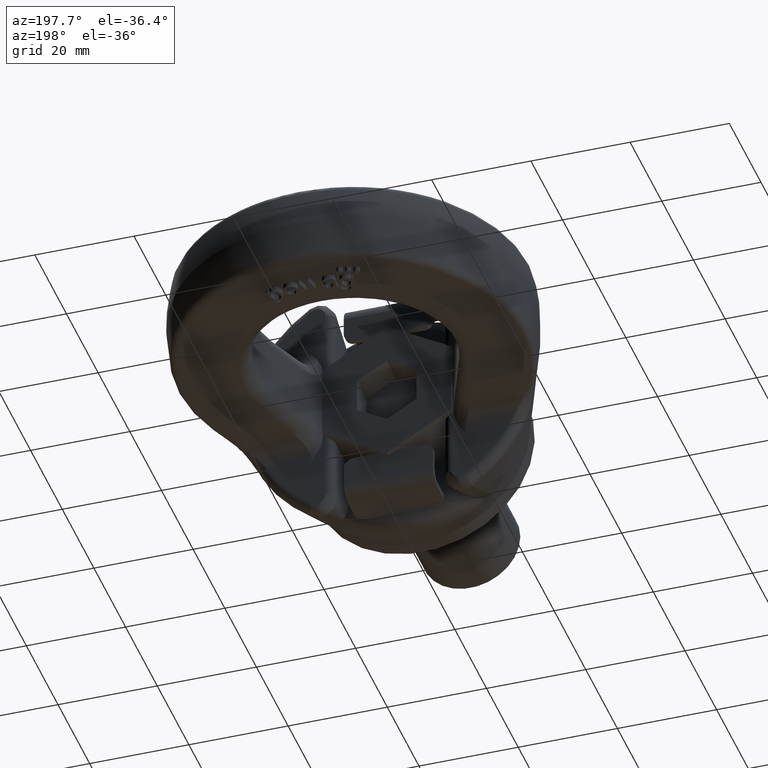
[diagram: clean part render]
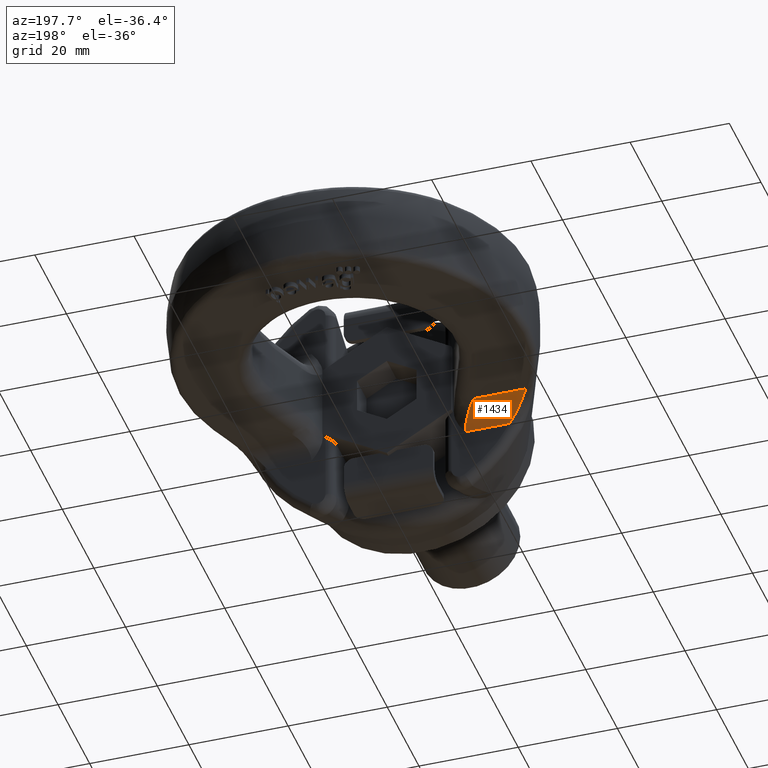
[diagram: same view with one face highlighted and labeled with its STEP entity id]
A machine part, auxiliary view. The second image highlights one B-rep face of the part: STEP entity #1434.
In plain terms, the highlighted cylindrical surface (edge-blend (fillet) strip) has radius 4.25 mm, axis along (1, 0, 0).
Its self-contained STEP definition (entity closure, byte-faithful):
#1054=ELLIPSE('',#5261,5.21660411703747,4.25);
#1068=CYLINDRICAL_SURFACE('',#5262,4.25);
#1202=FACE_OUTER_BOUND('',#1965,.T.);
#1434=ADVANCED_FACE('',(#1202),#1068,.F.);
#1965=EDGE_LOOP('',(#3377,#3378,#3379,#3380));
#2130=LINE('',#6613,#2410);
#2243=LINE('',#8213,#2551);
#2410=VECTOR('',#5444,1.);
#2551=VECTOR('',#5831,1.);
#3377=ORIENTED_EDGE('',*,*,#4602,.F.);
#3378=ORIENTED_EDGE('',*,*,#4644,.T.);
#3379=ORIENTED_EDGE('',*,*,#4339,.F.);
#3380=ORIENTED_EDGE('',*,*,#4645,.T.);
#3951=VERTEX_POINT('',#6612);
#3952=VERTEX_POINT('',#6614);
#4119=VERTEX_POINT('',#8212);
#4120=VERTEX_POINT('',#8214);
#4339=EDGE_CURVE('',#3951,#3952,#2130,.T.);
#4602=EDGE_CURVE('',#4119,#4120,#2243,.T.);
#4644=EDGE_CURVE('',#4119,#3952,#1054,.T.);
#4645=EDGE_CURVE('',#3951,#4120,#5024,.T.);
#5024=B_SPLINE_CURVE_WITH_KNOTS('',3,(#8478,#8479,#8480,#8481,#8482,#8483),
 .UNSPECIFIED.,.F.,.F.,(4,2,4),(0.,0.5,1.),.UNSPECIFIED.);
#5261=AXIS2_PLACEMENT_3D('',#8477,#5877,#5878);
#5262=AXIS2_PLACEMENT_3D('',#8484,#5879,#5880);
#5444=DIRECTION('',(1.,0.,2.34291072916505E-15));
#5831=DIRECTION('',(-1.,0.,-2.34291072916505E-15));
#5877=DIRECTION('',(0.814706254231458,0.579873882250397,1.90878402415675E-15));
#5878=DIRECTION('',(0.579873882250397,-0.814706254231458,1.35859274028704E-15));
#5879=DIRECTION('',(1.,0.,2.34291072916505E-15));
#5880=DIRECTION('',(2.44902137784961E-15,0.,-1.));
#6612=CARTESIAN_POINT('',(-24.3800451344664,22.,-12.7500000000001));
#6613=CARTESIAN_POINT('',(-11.,22.,-12.75));
#6614=CARTESIAN_POINT('',(-15.5146977886794,22.,-12.75));
#8212=CARTESIAN_POINT('',(-18.5396702701893,26.25,-8.50000000000005));
#8213=CARTESIAN_POINT('',(-72.,26.25,-8.50000000000018));
#8214=CARTESIAN_POINT('',(-29.0810240794151,26.25,-8.50000000000008));
#8477=CARTESIAN_POINT('',(-18.5396702701893,26.25,-12.7500000000001));
#8478=CARTESIAN_POINT('',(-24.3800451344664,22.,-12.7500000000001));
#8479=CARTESIAN_POINT('',(-25.1916173548417,22.,-11.641531240189));
#8480=CARTESIAN_POINT('',(-26.021848660788,22.4274196428118,-10.589634718167));
#8481=CARTESIAN_POINT('',(-27.6265832370635,23.9606033109914,-9.00327322340335));
#8482=CARTESIAN_POINT('',(-28.4011162590618,25.0540791651556,-8.50000000000007));
#8483=CARTESIAN_POINT('',(-29.0810240794151,26.25,-8.50000000000007));
#8484=CARTESIAN_POINT('',(-11.,26.25,-12.75));